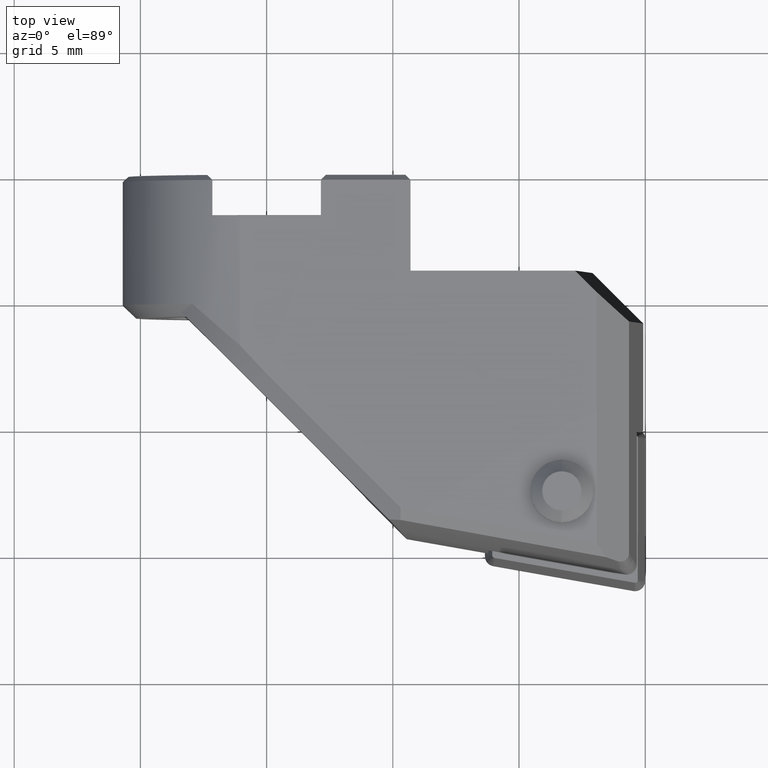
[diagram: clean part render]
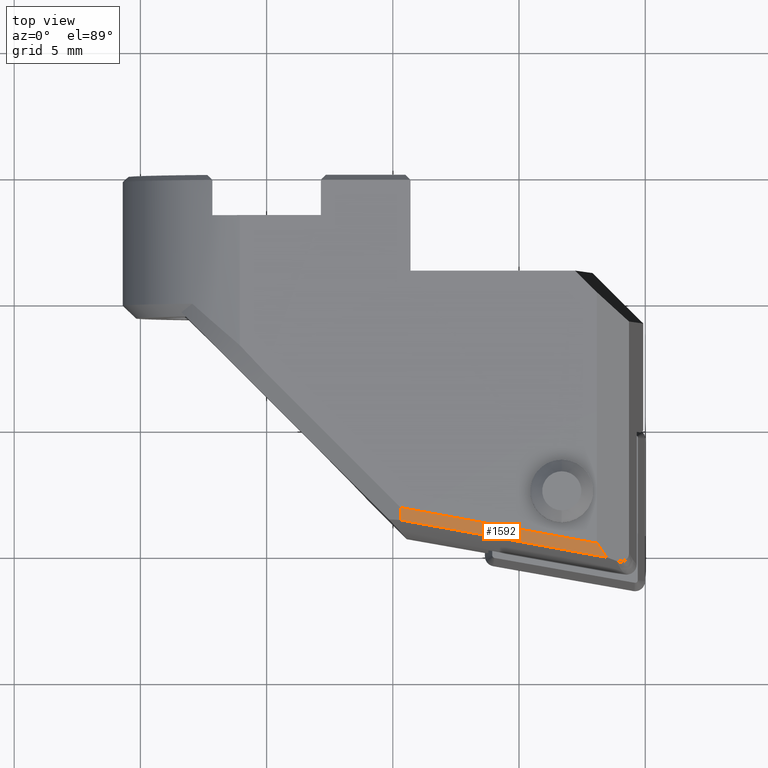
[diagram: same view with one face highlighted and labeled with its STEP entity id]
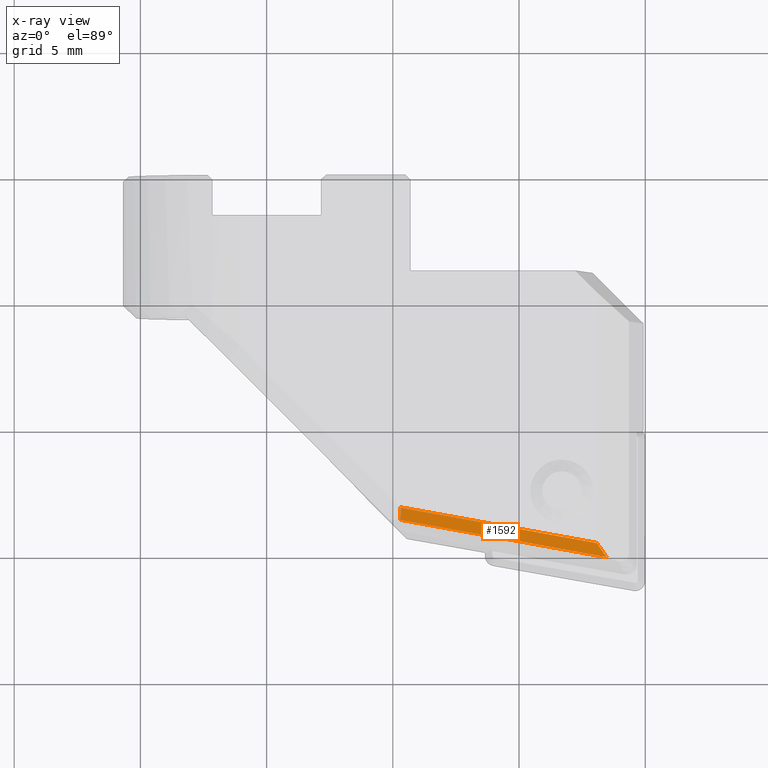
[diagram: x-ray of the same camera — body ghosted, the highlighted face saturated]
A machine part, top view. The second image highlights one B-rep face of the part: STEP entity #1592.
The next image is the same camera in x-ray: the body ghosted, the highlighted face saturated — about 0% of this face is hidden behind the body in this view.
In plain terms, the highlighted face is a freeform B-spline surface patch.
Its self-contained STEP definition (entity closure, byte-faithful):
#620=EDGE_CURVE('NONE',#656,#698,#1763,.T.);
#656=VERTEX_POINT('NONE',#1801);
#698=VERTEX_POINT('NONE',#1846);
#764=VERTEX_POINT('NONE',#1917);
#810=EDGE_CURVE('NONE',#656,#1454,#1964,.T.);
#1372=EDGE_CURVE('NONE',#698,#764,#2595,.F.);
#1454=VERTEX_POINT('NONE',#2685);
#1592=ADVANCED_FACE('NONE',(#2833),#2834,.T.);
#1708=EDGE_CURVE('NONE',#764,#1454,#2963,.T.);
#1763=B_SPLINE_CURVE_WITH_KNOTS('',3,(#3023,#3024,#3025,#3026,#3027,#3028,#3029,#3030,#3031,#3032,#3033,#3034),.UNSPECIFIED.,.F.,.F.,(4,2,2,2,2,4),(-9.78587928076607,-8.71451590367417,-7.64335438587341,-5.50123658445705,-1.21867820815756,-0.0),.UNSPECIFIED.);
#1801=CARTESIAN_POINT('',(13.4710769397371,-15.1552312710952,5.29970917868589));
#1846=CARTESIAN_POINT('',(5.30483348837496,-13.6750876793138,5.30737830274481));
#1917=CARTESIAN_POINT('',(5.31146016561699,-13.1909764357739,5.6));
#1964=B_SPLINE_CURVE_WITH_KNOTS('',3,(#3323,#3324,#3325,#3326,#3327,#3328),.UNSPECIFIED.,.F.,.F.,(4,2,4),(0.0,0.484893368935663,0.974696512959279),.UNSPECIFIED.);
#2595=B_SPLINE_CURVE_WITH_KNOTS('',3,(#4704,#4705,#4706,#4707,#4708,#4709),.UNSPECIFIED.,.F.,.F.,(4,2,4),(-0.747567712295285,-0.373744798040625,-0.0),.UNSPECIFIED.);
#2685=CARTESIAN_POINT('',(13.0867222904355,-14.5985384819987,5.6));
#2833=FACE_OUTER_BOUND('',#5037,.T.);
#2834=B_SPLINE_SURFACE_WITH_KNOTS('',1,3,((#5038,#5039,#5040,#5041,#5042,#5043,#5044,#5045,#5046,#5047),(#5048,#5049,#5050,#5051,#5052,#5053,#5054,#5055,#5056,#5057),(#5058,#5059,#5060,#5061,#5062,#5063,#5064,#5065,#5066,#5067),(#5068,#5069,#5070,#5071,#5072,#5073,#5074,#5075,#5076,#5077)),.UNSPECIFIED.,.F.,.F.,.F.,(2,1,1,2),(4,3,3,4),(-0.160721923835686,0.0,1.0,1.16072192383569),(0.0213669796071433,0.0214569796140514,0.0298358555832766,0.0299258555708087),.UNSPECIFIED.);
#2963=B_SPLINE_CURVE_WITH_KNOTS('',3,(#5265,#5266,#5267,#5268,#5269,#5270),.UNSPECIFIED.,.F.,.F.,(4,2,4),(-3.6680498017248,-1.8378689587683,-0.0),.UNSPECIFIED.);
#3023=CARTESIAN_POINT('',(13.5596428564691,-15.1712506069513,5.29965351986083));
#3024=CARTESIAN_POINT('',(13.2522088725556,-15.1156452251892,5.29984570459118));
#3025=CARTESIAN_POINT('',(12.9455531072492,-15.0601692872093,5.30004442277486));
#3026=CARTESIAN_POINT('',(12.331381821018,-14.9490382058228,5.30045896000161));
#3027=CARTESIAN_POINT('',(12.024299361683,-14.8934614002544,5.30067447997445));
#3028=CARTESIAN_POINT('',(11.1031981873349,-14.7267203378501,5.30134925154841));
#3029=CARTESIAN_POINT('',(10.4889415171668,-14.6154759049802,5.30183699115158));
#3030=CARTESIAN_POINT('',(8.64729400520403,-14.281784192749,5.30344137507724));
#3031=CARTESIAN_POINT('',(7.41806844227278,-14.0588429133266,5.30470167653562));
#3032=CARTESIAN_POINT('',(5.84100951235993,-13.7724886370193,5.30666356007647));
#3033=CARTESIAN_POINT('',(5.53738244006219,-13.7173421700916,5.30705897636259));
#3034=CARTESIAN_POINT('',(5.13770054469244,-13.6447219060113,5.30760597474021));
#3323=CARTESIAN_POINT('',(13.5329217927837,-15.2447338329704,5.25139070198619));
#3324=CARTESIAN_POINT('',(13.448943343197,-15.1232125748245,5.31700185758461));
#3325=CARTESIAN_POINT('',(13.3643959146424,-15.000813675761,5.38305754827239));
#3326=CARTESIAN_POINT('',(13.1951065852085,-14.7556201894643,5.51532086808009));
#3327=CARTESIAN_POINT('',(13.1100450917484,-14.6323618112375,5.58177819028964));
#3328=CARTESIAN_POINT('',(13.0250201414467,-14.5090954929346,5.64820696185485));
#4704=CARTESIAN_POINT('',(5.31249025095329,-13.113167545318,5.64701082579759));
#4705=CARTESIAN_POINT('',(5.31108451505871,-13.2198556991849,5.58255561223981));
#4706=CARTESIAN_POINT('',(5.30965254908923,-13.3264497621786,5.51814086333965));
#4707=CARTESIAN_POINT('',(5.30673346240585,-13.5396931615225,5.38924551846104));
#4708=CARTESIAN_POINT('',(5.3052469671764,-13.6462976356155,5.32479204632934));
#4709=CARTESIAN_POINT('',(5.30373373328372,-13.7528933725537,5.2603278400935));
#5037=EDGE_LOOP('',(#6578,#6579,#6580,#6581));
#5038=CARTESIAN_POINT('',(5.23659885668373,-13.0994082233661,5.64699422534509));
#5039=CARTESIAN_POINT('',(5.26611745007707,-13.104760026874,5.64700068223012));
#5040=CARTESIAN_POINT('',(5.2956360434704,-13.1101118303818,5.64700713911514));
#5041=CARTESIAN_POINT('',(5.32515463686374,-13.1154636338896,5.64701359600017));
#5042=CARTESIAN_POINT('',(8.07329479068974,-13.6137091267988,5.64761472305194));
#5043=CARTESIAN_POINT('',(10.8215922191254,-14.1111033792287,5.64798547155019));
#5044=CARTESIAN_POINT('',(13.5700598047197,-14.6075585982418,5.64826331853061));
#5045=CARTESIAN_POINT('',(13.5995819087995,-14.6128911707355,5.64826630296729));
#5046=CARTESIAN_POINT('',(13.6291040128794,-14.6182237432291,5.64826928740397));
#5047=CARTESIAN_POINT('',(13.6586261169593,-14.6235563157228,5.64827227184065));
#5048=CARTESIAN_POINT('',(5.22290465969345,-13.1749164180084,5.6));
#5049=CARTESIAN_POINT('',(5.25242315838814,-13.1802697566688,5.6));
#5050=CARTESIAN_POINT('',(5.28194165708282,-13.1856230953291,5.6));
#5051=CARTESIAN_POINT('',(5.3114601557775,-13.1909764339894,5.6));
#5052=CARTESIAN_POINT('',(8.05959149328973,-13.6893648474692,5.6));
#5053=CARTESIAN_POINT('',(10.8078889217254,-14.1868450144621,5.6));
#5054=CARTESIAN_POINT('',(13.5563539495489,-14.683393308705,5.6));
#5055=CARTESIAN_POINT('',(13.585876026155,-14.6887268809472,5.6));
#5056=CARTESIAN_POINT('',(13.6153981027611,-14.6940604531895,5.6));
#5057=CARTESIAN_POINT('',(13.6449201793672,-14.6993940254318,5.6));
#5058=CARTESIAN_POINT('',(5.13770037229161,-13.6447228566092,5.30760538311418));
#5059=CARTESIAN_POINT('',(5.16721828177821,-13.6500857468755,5.30756520884999));
#5060=CARTESIAN_POINT('',(5.19673619126481,-13.6554486371419,5.3075250345858));
#5061=CARTESIAN_POINT('',(5.2262541007514,-13.6608115274082,5.3074848603216));
#5062=CARTESIAN_POINT('',(7.97433058380725,-14.1600891821767,5.30374469197729));
#5063=CARTESIAN_POINT('',(10.7226280122429,-14.6581039032668,5.30143792206433));
#5064=CARTESIAN_POINT('',(13.4710771258049,-15.1552313047503,5.29970917856886));
#5065=CARTESIAN_POINT('',(13.5005990314712,-15.1605710973549,5.29969060962314));
#5066=CARTESIAN_POINT('',(13.5301209371375,-15.1659108899595,5.29967204067743));
#5067=CARTESIAN_POINT('',(13.5596428428038,-15.1712506825641,5.29965347173171));
#5068=CARTESIAN_POINT('',(5.12400617530134,-13.7202310512515,5.2606111577691));
#5069=CARTESIAN_POINT('',(5.15352399008928,-13.7255954766703,5.26056452661987));
#5070=CARTESIAN_POINT('',(5.18304180487722,-13.7309599020892,5.26051789547065));
#5071=CARTESIAN_POINT('',(5.21255961966516,-13.736324327508,5.26047126432143));
#5072=CARTESIAN_POINT('',(7.96062728640724,-14.2357449028471,5.25612996892535));
#5073=CARTESIAN_POINT('',(10.7089247148429,-14.7338455385001,5.25345245051413));
#5074=CARTESIAN_POINT('',(13.4573712706342,-15.2310660152135,5.25144586003825));
#5075=CARTESIAN_POINT('',(13.4868931488267,-15.2364068075667,5.25142430665585));
#5076=CARTESIAN_POINT('',(13.5164150270192,-15.2417475999199,5.25140275327346));
#5077=CARTESIAN_POINT('',(13.5459369052117,-15.2470883922731,5.25138119989106));
#5265=CARTESIAN_POINT('',(5.22290465969346,-13.1749164180084,5.6));
#5266=CARTESIAN_POINT('',(5.82785563883912,-13.2846275350187,5.6));
#5267=CARTESIAN_POINT('',(7.3769057526717,-13.5655561129566,5.6));
#5268=CARTESIAN_POINT('',(11.4992984699786,-14.3117577305901,5.6));
#5269=CARTESIAN_POINT('',(13.0420567550036,-14.5904783936159,5.6));
#5270=CARTESIAN_POINT('',(13.6449201793672,-14.6993940254318,5.6));
#6578=ORIENTED_EDGE('',*,*,#620,.F.);
#6579=ORIENTED_EDGE('',*,*,#810,.T.);
#6580=ORIENTED_EDGE('',*,*,#1708,.F.);
#6581=ORIENTED_EDGE('',*,*,#1372,.F.);